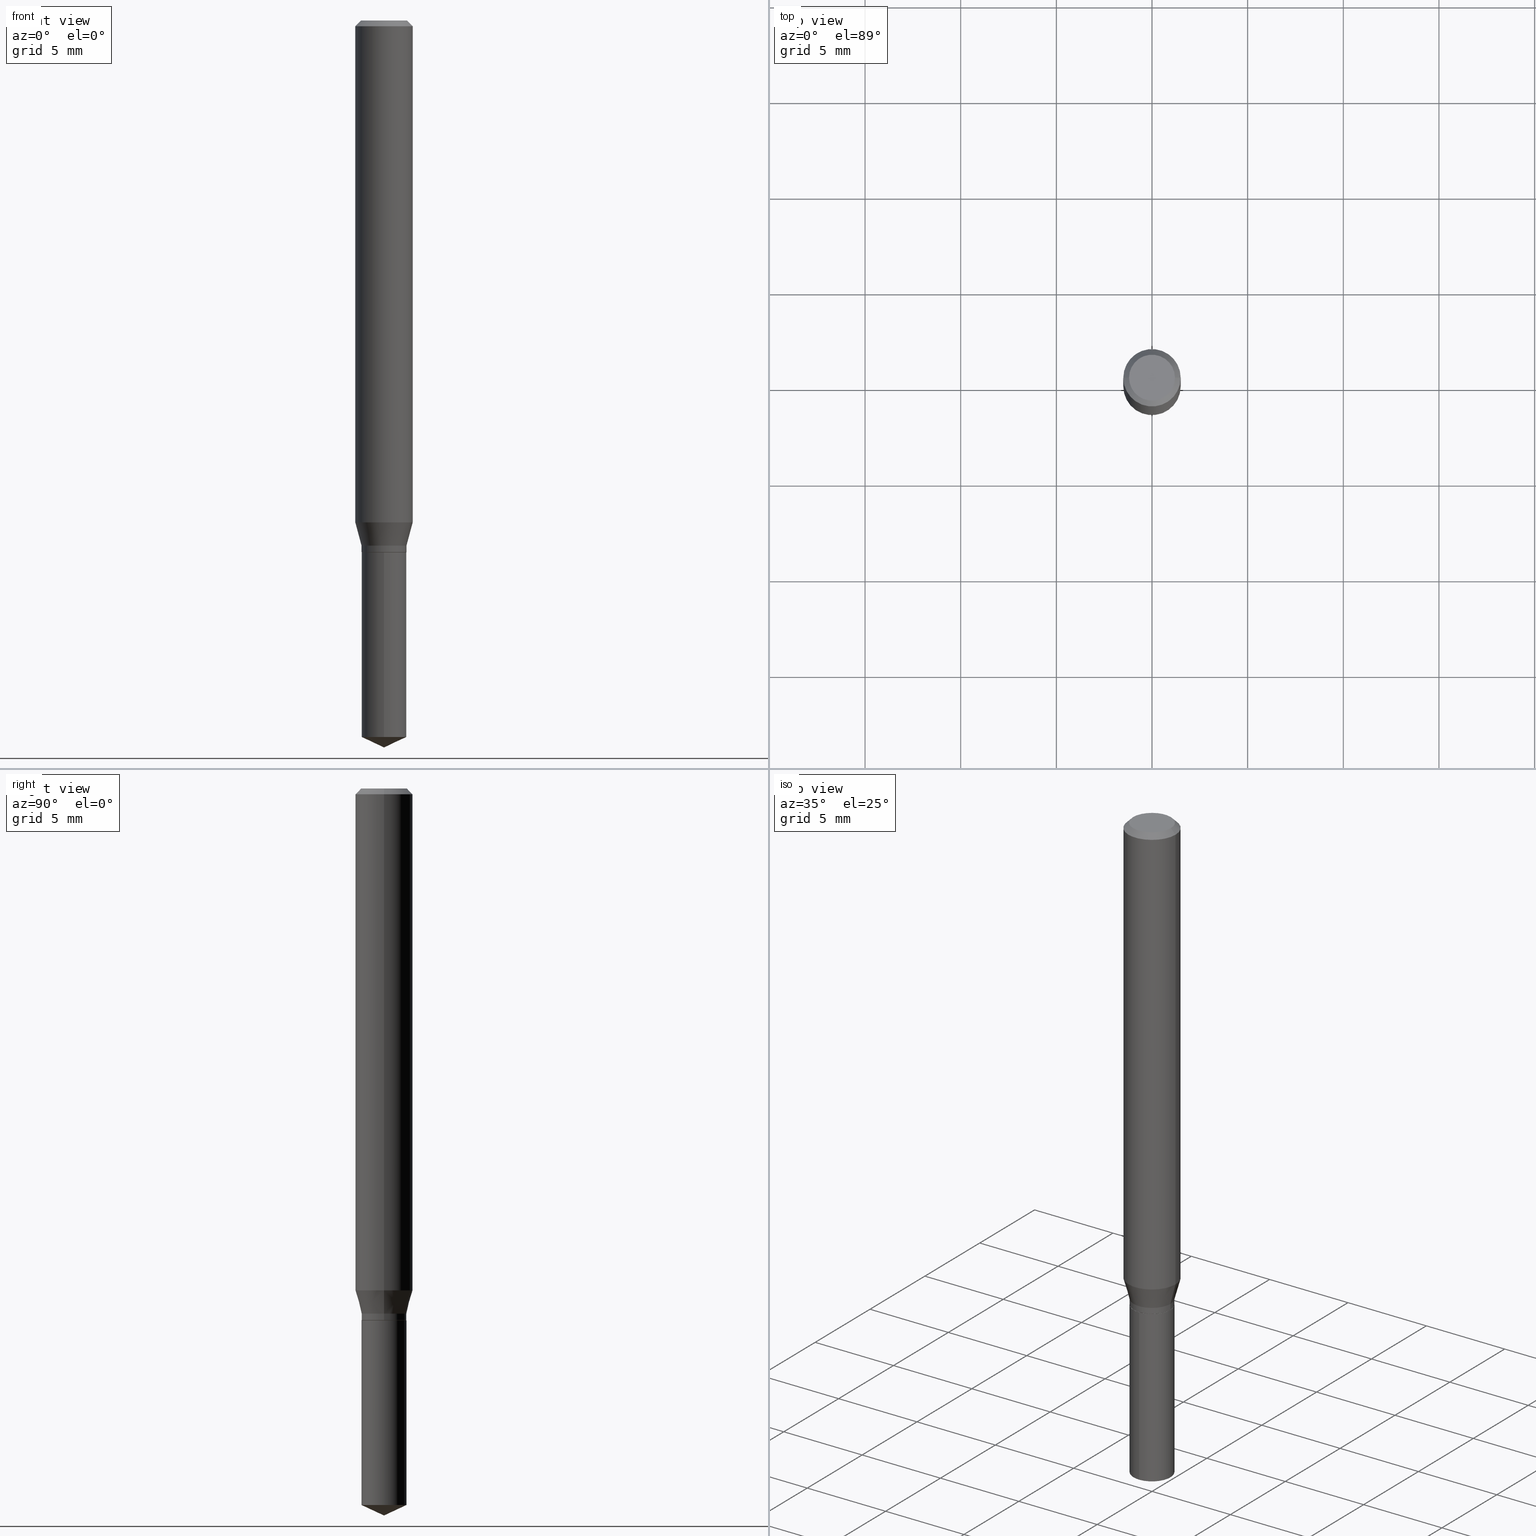
[diagram: canonical four-view strip — front | top / right | iso, engineering-drawing reading convention]
A machine part, canonical four-view strip (front | top / right | iso — engineering-drawing reading convention). The complete STEP part file that produces these views, byte-faithful:
ISO-10303-21;
HEADER;
FILE_DESCRIPTION (( 'STEP AP203' ),
    '1' );
FILE_NAME ('07642.STEP',
    '2024-04-24T00:15:13',
    ( '' ),
    ( '' ),
    'SwSTEP 2.0',
    'SolidWorks 2023',
    '' );
FILE_SCHEMA (( 'CONFIG_CONTROL_DESIGN' ));
ENDSEC;

DATA;
#1 = ADVANCED_BREP_SHAPE_REPRESENTATION ( '07642', ( #268, #77, #379 ), #323 ) ;
#2 = AXIS2_PLACEMENT_3D ( 'NONE', #212, #68, #95 ) ;
#3 = DIRECTION ( 'NONE',  ( -2.445468806185136597E-29, 3.491481338843145583E-15, 1.000000000000000000 ) ) ;
#4 = CC_DESIGN_APPROVAL ( #111, ( #227 ) ) ;
#5 = FACE_OUTER_BOUND ( 'NONE', #347, .T. ) ;
#6 = LINE ( 'NONE', #344, #281 ) ;
#7 = PERSON_AND_ORGANIZATION ( #176, #455 ) ;
#8 = CIRCLE ( 'NONE', #261, 0.04624999999999999944 ) ;
#9 = PERSON_AND_ORGANIZATION ( #176, #455 ) ;
#10 = DIRECTION ( 'NONE',  ( -2.445468806185136597E-29, 3.491481338843145583E-15, 1.000000000000000000 ) ) ;
#11 = APPROVAL_STATUS ( 'not_yet_approved' ) ;
#12 = ORIENTED_EDGE ( 'NONE', *, *, #420, .F. ) ;
#13 = DIRECTION ( 'NONE',  ( 2.445468806185136597E-29, -3.491481338843145583E-15, -1.000000000000000000 ) ) ;
#14 = APPROVAL_ROLE ( '' ) ;
#15 = VERTEX_POINT ( 'NONE', #126 ) ;
#16 = DIRECTION ( 'NONE',  ( 1.000000000000000000, -6.982962677686266711E-15, 4.876185090822587894E-29 ) ) ;
#17 = ADVANCED_FACE ( 'NONE', ( #292 ), #319, .F. ) ;
#18 = AXIS2_PLACEMENT_3D ( 'NONE', #414, #101, #298 ) ;
#19 = VECTOR ( 'NONE', #410, 39.37007874015748854 ) ;
#20 = VERTEX_POINT ( 'NONE', #76 ) ;
#21 = CARTESIAN_POINT ( 'NONE',  ( 2.888098660104663328E-31, -4.123439461173779030E-17, -0.01181000000000006871 ) ) ;
#22 = ORIENTED_EDGE ( 'NONE', *, *, #50, .T. ) ;
#23 = DIRECTION ( 'NONE',  ( -0.2588190451025210725, 5.211531920934548675E-15, 0.9659258262890682012 ) ) ;
#24 = ADVANCED_FACE ( 'NONE', ( #115 ), #294, .T. ) ;
#25 = CARTESIAN_POINT ( 'NONE',  ( -0.04624999999999999944, -3.467661644435105114E-15, -1.080600000000000005 ) ) ;
#26 = APPROVAL_PERSON_ORGANIZATION ( #393, #111, #155 ) ;
#27 = CARTESIAN_POINT ( 'NONE',  ( 2.675342873966538993E-29, -3.819680584694400481E-15, -1.093999999999999861 ) ) ;
#28 = ORIENTED_EDGE ( 'NONE', *, *, #320, .T. ) ;
#29 = CARTESIAN_POINT ( 'NONE',  ( 2.675342873966538993E-29, -3.819680584694400481E-15, -1.093999999999999861 ) ) ;
#30 = EDGE_CURVE ( 'NONE', #431, #229, #401, .T. ) ;
#31 = CARTESIAN_POINT ( 'NONE',  ( -0.05904999999999999832, 3.711095515056362547E-16, -0.01181000000000006871 ) ) ;
#32 = CC_DESIGN_PERSON_AND_ORGANIZATION_ASSIGNMENT ( #466, #359, ( #227 ) ) ;
#33 = VECTOR ( 'NONE', #376, 39.37007874015748143 ) ;
#34 = CIRCLE ( 'NONE', #488, 0.04624999999999999944 ) ;
#35 = DIRECTION ( 'NONE',  ( -1.000000000000000000, 6.982962677686265922E-15, -4.876176775795935793E-29 ) ) ;
#36 = CYLINDRICAL_SURFACE ( 'NONE', #246, 0.05905000000000006771 ) ;
#37 = EDGE_CURVE ( 'NONE', #220, #103, #196, .T. ) ;
#38 = CC_DESIGN_PERSON_AND_ORGANIZATION_ASSIGNMENT ( #9, #395, ( #227 ) ) ;
#39 = CYLINDRICAL_SURFACE ( 'NONE', #122, 0.04624999999999999944 ) ;
#40 = VECTOR ( 'NONE', #483, 39.37007874015748143 ) ;
#41 = LINE ( 'NONE', #267, #450 ) ;
#42 = FACE_OUTER_BOUND ( 'NONE', #290, .T. ) ;
#43 = EDGE_LOOP ( 'NONE', ( #129, #22, #459, #265 ) ) ;
#44 = DIRECTION ( 'NONE',  ( 0.000000000000000000, 0.000000000000000000, 1.000000000000000000 ) ) ;
#45 = ORIENTED_EDGE ( 'NONE', *, *, #30, .T. ) ;
#46 = AXIS2_PLACEMENT_3D ( 'NONE', #468, #234, #168 ) ;
#47 = AXIS2_PLACEMENT_3D ( 'NONE', #272, #490, #112 ) ;
#48 = CYLINDRICAL_SURFACE ( 'NONE', #69, 0.04624999999999999944 ) ;
#49 = CARTESIAN_POINT ( 'NONE',  ( -0.04624999999999999944, -3.467661644435105114E-15, -1.093999999999999861 ) ) ;
#50 = EDGE_CURVE ( 'NONE', #220, #403, #480, .T. ) ;
#51 = ADVANCED_FACE ( 'NONE', ( #89 ), #93, .T. ) ;
#52 = PERSON_AND_ORGANIZATION ( #176, #455 ) ;
#53 = EDGE_LOOP ( 'NONE', ( #96, #472, #45, #128 ) ) ;
#54 = DIRECTION ( 'NONE',  ( 1.000000000000000000, -6.982962677686265133E-15, 0.000000000000000000 ) ) ;
#55 = DIRECTION ( 'NONE',  ( -2.445458899330790108E-29, 3.491495526022433205E-15, 1.000000000000000000 ) ) ;
#56 = VECTOR ( 'NONE', #23, 39.37007874015748143 ) ;
#57 = CIRCLE ( 'NONE', #108, 0.05905000000000013016 ) ;
#58 = ORIENTED_EDGE ( 'NONE', *, *, #341, .T. ) ;
#59 = FACE_OUTER_BOUND ( 'NONE', #336, .T. ) ;
#60 = ORIENTED_EDGE ( 'NONE', *, *, #320, .F. ) ;
#61 = CARTESIAN_POINT ( 'NONE',  ( -0.05904999999999999832, -1.404094610414935572E-15, -0.01181000000000006871 ) ) ;
#62 = CARTESIAN_POINT ( 'NONE',  ( 0.04624999999999999944, -4.142642608537390474E-15, -1.093999999999999861 ) ) ;
#63 = CIRCLE ( 'NONE', #350, 0.04624999999999999944 ) ;
#64 = SECURITY_CLASSIFICATION ( '', '', #158 ) ;
#65 = CARTESIAN_POINT ( 'NONE',  ( 2.676565608369631794E-29, -3.821426325363822773E-15, -1.094499999999999806 ) ) ;
#66 = CC_DESIGN_PERSON_AND_ORGANIZATION_ASSIGNMENT ( #7, #363, ( #118 ) ) ;
#67 = LINE ( 'NONE', #415, #462 ) ;
#68 = DIRECTION ( 'NONE',  ( -2.445458899330790108E-29, 3.491495526022433205E-15, 1.000000000000000000 ) ) ;
#69 = AXIS2_PLACEMENT_3D ( 'NONE', #192, #369, #117 ) ;
#70 = DIRECTION ( 'NONE',  ( -6.982962677686265922E-15, -1.000000000000000000, 5.906698364679487997E-15 ) ) ;
#71 = ADVANCED_FACE ( 'NONE', ( #287 ), #48, .T. ) ;
#72 = CARTESIAN_POINT ( 'NONE',  ( 0.05905000000000013016, -4.018449743268188111E-15, -1.032829749663117802 ) ) ;
#73 = ORIENTED_EDGE ( 'NONE', *, *, #189, .T. ) ;
#74 = DIRECTION ( 'NONE',  ( -6.982962677686265922E-15, -1.000000000000000000, 2.953349182339743999E-15 ) ) ;
#75 = CARTESIAN_POINT ( 'NONE',  ( 2.676565608369631794E-29, -3.821426325363822773E-15, -1.094499999999999806 ) ) ;
#76 = CARTESIAN_POINT ( 'NONE',  ( 0.04574999999999999900, -4.140896867867968970E-15, -1.094499999999999806 ) ) ;
#77 = MANIFOLD_SOLID_BREP ( 'Body-Move/Copy2[2]', #107 ) ;
#78 = COORDINATED_UNIVERSAL_TIME_OFFSET ( 5, 0, .BEHIND. ) ;
#79 = AXIS2_PLACEMENT_3D ( 'NONE', #331, #97, #144 ) ;
#80 = VECTOR ( 'NONE', #351, 39.37007874015748854 ) ;
#81 = LINE ( 'NONE', #404, #172 ) ;
#82 = CC_DESIGN_DATE_AND_TIME_ASSIGNMENT ( #318, #119, ( #64 ) ) ;
#83 = ORIENTED_EDGE ( 'NONE', *, *, #482, .T. ) ;
#84 = APPROVAL_ROLE ( '' ) ;
#85 = CARTESIAN_POINT ( 'NONE',  ( 8.265746106709734507E-48, -1.180129479067563789E-33, -3.380025165646692144E-19 ) ) ;
#86 = ORIENTED_EDGE ( 'NONE', *, *, #149, .T. ) ;
#87 = DATE_AND_TIME ( #434, #156 ) ;
#88 = ORIENTED_EDGE ( 'NONE', *, *, #445, .T. ) ;
#89 = FACE_OUTER_BOUND ( 'NONE', #203, .T. ) ;
#90 = ORIENTED_EDGE ( 'NONE', *, *, #104, .F. ) ;
#91 = ORIENTED_EDGE ( 'NONE', *, *, #151, .T. ) ;
#92 = DIRECTION ( 'NONE',  ( -1.000000000000000000, 6.982962677686266711E-15, 0.000000000000000000 ) ) ;
#93 = CONICAL_SURFACE ( 'NONE', #343, 0.04574999999999999900, 0.7853981633974141952 ) ;
#94 = LOCAL_TIME ( 20, 15, 13.00000000000000000, #471 ) ;
#95 = DIRECTION ( 'NONE',  ( -6.982962677686267499E-15, -1.000000000000000000, 3.520397390770430993E-15 ) ) ;
#96 = ORIENTED_EDGE ( 'NONE', *, *, #189, .F. ) ;
#97 = DIRECTION ( 'NONE',  ( -2.445468806185136597E-29, 3.491481338843145583E-15, 1.000000000000000000 ) ) ;
#98 = ADVANCED_FACE ( 'NONE', ( #123 ), #389, .T. ) ;
#99 = DIRECTION ( 'NONE',  ( 1.000000000000000000, -6.982962677686265133E-15, 0.000000000000000000 ) ) ;
#100 = ADVANCED_FACE ( 'NONE', ( #317 ), #142, .T. ) ;
#101 = DIRECTION ( 'NONE',  ( -2.445468806185136597E-29, 3.491481338843145583E-15, 1.000000000000000000 ) ) ;
#102 = DIRECTION ( 'NONE',  ( -2.445468806185136877E-29, 3.491481338843145188E-15, 1.000000000000000000 ) ) ;
#103 = VERTEX_POINT ( 'NONE', #285 ) ;
#104 = EDGE_CURVE ( 'NONE', #103, #229, #81, .T. ) ;
#105 = CARTESIAN_POINT ( 'NONE',  ( 3.658651059288795076E-29, -5.223626456482161457E-15, -1.496099999999999985 ) ) ;
#106 = ADVANCED_FACE ( 'NONE', ( #394 ), #130, .T. ) ;
#107 = CLOSED_SHELL ( 'NONE', ( #51, #24, #385, #409, #106, #71, #98, #217, #157, #174, #346, #283 ) ) ;
#108 = AXIS2_PLACEMENT_3D ( 'NONE', #384, #216, #313 ) ;
#109 = DIRECTION ( 'NONE',  ( -2.445458899330790108E-29, 3.491495526022433205E-15, 1.000000000000000000 ) ) ;
#110 = LINE ( 'NONE', #105, #173 ) ;
#111 = APPROVAL ( #368, 'UNSPECIFIED' ) ;
#112 = DIRECTION ( 'NONE',  ( 1.000000000000000000, -6.982962677686265133E-15, 0.000000000000000000 ) ) ;
#113 = VECTOR ( 'NONE', #373, 39.37007874015748143 ) ;
#114 = DATE_TIME_ROLE ( 'creation_date' ) ;
#115 = FACE_OUTER_BOUND ( 'NONE', #53, .T. ) ;
#116 = PERSON_AND_ORGANIZATION ( #176, #455 ) ;
#117 = DIRECTION ( 'NONE',  ( 1.000000000000000000, -6.982962677686266711E-15, 4.876176775795935793E-29 ) ) ;
#118 = PRODUCT_DEFINITION ( 'UNKNOWN', '', #227, #442 ) ;
#119 = DATE_TIME_ROLE ( 'classification_date' ) ;
#120 = AXIS2_PLACEMENT_3D ( 'NONE', #435, #362, #127 ) ;
#121 = ORIENTED_EDGE ( 'NONE', *, *, #104, .T. ) ;
#122 = AXIS2_PLACEMENT_3D ( 'NONE', #185, #386, #150 ) ;
#123 = FACE_OUTER_BOUND ( 'NONE', #43, .T. ) ;
#124 = COORDINATED_UNIVERSAL_TIME_OFFSET ( 5, 0, .BEHIND. ) ;
#125 = ORIENTED_EDGE ( 'NONE', *, *, #375, .F. ) ;
#126 = CARTESIAN_POINT ( 'NONE',  ( -3.229620238429630240E-16, -0.04625000000000382971, -1.094499999999999806 ) ) ;
#127 = DIRECTION ( 'NONE',  ( 1.000000000000000000, -6.982962677686266711E-15, 4.876176775795935793E-29 ) ) ;
#128 = ORIENTED_EDGE ( 'NONE', *, *, #209, .F. ) ;
#129 = ORIENTED_EDGE ( 'NONE', *, *, #37, .F. ) ;
#130 = CYLINDRICAL_SURFACE ( 'NONE', #120, 0.04624999999999999944 ) ;
#131 = UNCERTAINTY_MEASURE_WITH_UNIT (LENGTH_MEASURE( 1.000000000000000082E-05 ), #306, 'distance_accuracy_value', 'NONE');
#132 = DIRECTION ( 'NONE',  ( -6.982962677686265922E-15, -1.000000000000000000, 5.906698364679487997E-15 ) ) ;
#133 = CONICAL_SURFACE ( 'NONE', #163, 0.05904999999999999832, 0.7853981633974452814 ) ;
#134 = AXIS2_PLACEMENT_3D ( 'NONE', #349, #187, #380 ) ;
#135 = VERTEX_POINT ( 'NONE', #49 ) ;
#136 = CARTESIAN_POINT ( 'NONE',  ( 0.04574999999999999900, -4.140896867867968970E-15, -1.094499999999999806 ) ) ;
#137 = EDGE_CURVE ( 'NONE', #403, #220, #8, .T. ) ;
#138 = CARTESIAN_POINT ( 'NONE',  ( 0.04624999999999999944, -3.229620238429898452E-16, 2.255231758805620374E-30 ) ) ;
#139 = EDGE_CURVE ( 'NONE', #484, #103, #226, .T. ) ;
#140 = DIMENSIONAL_EXPONENTS ( 1.000000000000000000, 0.000000000000000000, 0.000000000000000000, 0.000000000000000000, 0.000000000000000000, 0.000000000000000000, 0.000000000000000000 ) ;
#141 = CARTESIAN_POINT ( 'NONE',  ( 3.658651059288794515E-29, -5.223626456482161457E-15, -1.496099999999999985 ) ) ;
#142 = CONICAL_SURFACE ( 'NONE', #244, 84.42940631927488937, 1.134464013796318449 ) ;
#143 = AXIS2_PLACEMENT_3D ( 'NONE', #75, #180, #74 ) ;
#144 = DIRECTION ( 'NONE',  ( 1.000000000000000000, -6.982962677686266711E-15, 4.876185090822587894E-29 ) ) ;
#145 = FACE_OUTER_BOUND ( 'NONE', #340, .T. ) ;
#146 = CARTESIAN_POINT ( 'NONE',  ( 0.04624999999999999944, -4.095856758596892601E-15, -1.080600000000000005 ) ) ;
#147 = DIRECTION ( 'NONE',  ( 0.2588190451025210725, 1.565188264969624137E-15, 0.9659258262890682012 ) ) ;
#148 = ORIENTED_EDGE ( 'NONE', *, *, #37, .T. ) ;
#149 = EDGE_CURVE ( 'NONE', #326, #470, #293, .T. ) ;
#150 = DIRECTION ( 'NONE',  ( -6.982962677686265922E-15, -1.000000000000000000, 2.953349182339743999E-15 ) ) ;
#151 = EDGE_CURVE ( 'NONE', #15, #233, #179, .T. ) ;
#152 = CARTESIAN_POINT ( 'NONE',  ( 0.000000000000000000, 0.000000000000000000, 0.000000000000000000 ) ) ;
#153 = ORIENTED_EDGE ( 'NONE', *, *, #237, .T. ) ;
#154 = CLOSED_SHELL ( 'NONE', ( #421, #100, #207, #438, #17 ) ) ;
#155 = APPROVAL_ROLE ( '' ) ;
#156 = LOCAL_TIME ( 20, 15, 13.00000000000000000, #124 ) ;
#157 = ADVANCED_FACE ( 'NONE', ( #477 ), #133, .T. ) ;
#158 = SECURITY_CLASSIFICATION_LEVEL ( 'unclassified' ) ;
#159 = DIRECTION ( 'NONE',  ( 1.000000000000000000, -6.982962677686265133E-15, 0.000000000000000000 ) ) ;
#160 = CALENDAR_DATE ( 2024, 23, 4 ) ;
#161 = DIRECTION ( 'NONE',  ( -2.445468806185136597E-29, 3.491481338843145583E-15, 1.000000000000000000 ) ) ;
#162 =( NAMED_UNIT ( * ) PLANE_ANGLE_UNIT ( ) SI_UNIT ( $, .RADIAN. ) );
#163 = AXIS2_PLACEMENT_3D ( 'NONE', #21, #441, #92 ) ;
#164 = AXIS2_PLACEMENT_3D ( 'NONE', #307, #3, #353 ) ;
#165 = CARTESIAN_POINT ( 'NONE',  ( 2.676565608369631794E-29, -3.821426325363822773E-15, -1.094499999999999806 ) ) ;
#166 = ORIENTED_EDGE ( 'NONE', *, *, #300, .T. ) ;
#167 = APPLICATION_PROTOCOL_DEFINITION ( 'international standard', 'config_control_design', 1994, #206 ) ;
#168 = DIRECTION ( 'NONE',  ( 1.000000000000000000, -6.982962677686265133E-15, 0.000000000000000000 ) ) ;
#169 = ORIENTED_EDGE ( 'NONE', *, *, #445, .F. ) ;
#170 = DIRECTION ( 'NONE',  ( 2.445458899330789267E-29, -3.491495526022433599E-15, -1.000000000000000000 ) ) ;
#171 = DIRECTION ( 'NONE',  ( 0.7071067811865232589, -2.468850131082003836E-15, 0.7071067811865715536 ) ) ;
#172 = VECTOR ( 'NONE', #330, 39.37007874015748143 ) ;
#173 = VECTOR ( 'NONE', #264, 39.37007874015748143 ) ;
#174 = ADVANCED_FACE ( 'NONE', ( #59 ), #370, .F. ) ;
#175 = DIRECTION ( 'NONE',  ( -2.445458899330790108E-29, 3.491495526022433599E-15, 1.000000000000000000 ) ) ;
#176 = PERSON ( 'UNSPECIFIED', 'UNSPECIFIED', 'UNSPECIFIED', ('UNSPECIFIED'), ('UNSPECIFIED'), ('UNSPECIFIED') ) ;
#177 = LINE ( 'NONE', #210, #113 ) ;
#178 = CARTESIAN_POINT ( 'NONE',  ( 3.605921352514544890E-29, -5.148310790137766755E-15, -1.474533270810331587 ) ) ;
#179 = CIRCLE ( 'NONE', #357, 0.04624999999999999944 ) ;
#180 = DIRECTION ( 'NONE',  ( -2.445458899330790108E-29, 3.491495526022433205E-15, 1.000000000000000000 ) ) ;
#181 = DIRECTION ( 'NONE',  ( 0.7071067811865453523, -7.319954787623248157E-15, -0.7071067811865496822 ) ) ;
#182 = ORIENTED_EDGE ( 'NONE', *, *, #458, .F. ) ;
#183 = CIRCLE ( 'NONE', #79, 0.04724000000000000421 ) ;
#184 = CC_DESIGN_APPROVAL ( #427, ( #64 ) ) ;
#185 = CARTESIAN_POINT ( 'NONE',  ( 2.676565608369631794E-29, -3.821426325363822773E-15, -1.094499999999999806 ) ) ;
#186 = EDGE_CURVE ( 'NONE', #329, #20, #423, .T. ) ;
#187 = DIRECTION ( 'NONE',  ( -2.438088387897960049E-29, 3.491481338843145188E-15, 1.000000000000000000 ) ) ;
#188 = MECHANICAL_CONTEXT ( 'NONE', #457, 'mechanical' ) ;
#189 = EDGE_CURVE ( 'NONE', #470, #326, #183, .T. ) ;
#190 = APPROVAL_PERSON_ORGANIZATION ( #238, #304, #84 ) ;
#191 = DATE_AND_TIME ( #316, #94 ) ;
#192 = CARTESIAN_POINT ( 'NONE',  ( 0.000000000000000000, 0.000000000000000000, 0.000000000000000000 ) ) ;
#193 = PERSON_AND_ORGANIZATION_ROLE ( 'design_owner' ) ;
#194 = CARTESIAN_POINT ( 'NONE',  ( 2.642573591963658303E-29, -3.772894734753902608E-15, -1.080600000000000005 ) ) ;
#195 = APPROVAL_STATUS ( 'not_yet_approved' ) ;
#196 = LINE ( 'NONE', #467, #56 ) ;
#197 = ORIENTED_EDGE ( 'NONE', *, *, #209, .T. ) ;
#198 = CALENDAR_DATE ( 2024, 23, 4 ) ;
#199 = AXIS2_PLACEMENT_3D ( 'NONE', #65, #452, #255 ) ;
#200 = DIRECTION ( 'NONE',  ( -6.982962677686265922E-15, -1.000000000000000000, 2.953349182339743999E-15 ) ) ;
#201 = EDGE_CURVE ( 'NONE', #278, #233, #67, .T. ) ;
#202 = ORIENTED_EDGE ( 'NONE', *, *, #137, .F. ) ;
#203 = EDGE_LOOP ( 'NONE', ( #275, #273, #437, #321 ) ) ;
#204 = ORIENTED_EDGE ( 'NONE', *, *, #352, .F. ) ;
#205 = CARTESIAN_POINT ( 'NONE',  ( 2.676565608369631794E-29, -3.821426325363822773E-15, -1.094499999999999806 ) ) ;
#206 = APPLICATION_CONTEXT ( 'configuration controlled 3d designs of mechanical parts and assemblies' ) ;
#207 = ADVANCED_FACE ( 'NONE', ( #253 ), #211, .T. ) ;
#208 = DIRECTION ( 'NONE',  ( 1.000000000000000000, -6.982962677686264344E-15, 0.000000000000000000 ) ) ;
#209 = EDGE_CURVE ( 'NONE', #326, #229, #371, .T. ) ;
#210 = CARTESIAN_POINT ( 'NONE',  ( -0.04624999999999999944, 3.286260152890463320E-16, -2.275007479242894085E-30 ) ) ;
#211 = CONICAL_SURFACE ( 'NONE', #2, 84.42940631927488937, 1.134464013796318449 ) ;
#212 = CARTESIAN_POINT ( 'NONE',  ( -9.261924752013118283E-28, 1.322368428517963298E-13, 37.87397874015748300 ) ) ;
#213 = CARTESIAN_POINT ( 'NONE',  ( -3.229620238429536562E-16, -0.04625000000000513423, -1.474533270810331143 ) ) ;
#214 = CARTESIAN_POINT ( 'NONE',  ( 2.676565608369631794E-29, -3.821426325363822773E-15, -1.094499999999999806 ) ) ;
#215 = DIRECTION ( 'NONE',  ( -2.445468806185136877E-29, 3.491481338843145188E-15, 1.000000000000000000 ) ) ;
#216 = DIRECTION ( 'NONE',  ( -2.445468806185136597E-29, 3.491481338843145583E-15, 1.000000000000000000 ) ) ;
#217 = ADVANCED_FACE ( 'NONE', ( #479 ), #407, .T. ) ;
#218 = DIRECTION ( 'NONE',  ( -2.445468806185136597E-29, 3.491481338843145583E-15, 1.000000000000000000 ) ) ;
#219 = ORIENTED_EDGE ( 'NONE', *, *, #263, .T. ) ;
#220 = VERTEX_POINT ( 'NONE', #25 ) ;
#221 = AXIS2_PLACEMENT_3D ( 'NONE', #360, #10, #159 ) ;
#222 = CIRCLE ( 'NONE', #164, 0.05904999999999999832 ) ;
#223 =( LENGTH_UNIT ( ) NAMED_UNIT ( * ) SI_UNIT ( $, .METRE. ) );
#224 = DIRECTION ( 'NONE',  ( 1.000000000000000000, 0.000000000000000000, 0.000000000000000000 ) ) ;
#225 = DIRECTION ( 'NONE',  ( 1.000000000000000000, -6.982962677686265133E-15, 0.000000000000000000 ) ) ;
#226 = CIRCLE ( 'NONE', #46, 0.05905000000000013016 ) ;
#227 = PRODUCT_DEFINITION_FORMATION_WITH_SPECIFIED_SOURCE ( 'ANY', '', #406, .NOT_KNOWN. ) ;
#228 = APPROVAL_DATE_TIME ( #464, #304 ) ;
#229 = VERTEX_POINT ( 'NONE', #61 ) ;
#230 = DIRECTION ( 'NONE',  ( 1.000000000000000000, -6.982962677686264344E-15, 0.000000000000000000 ) ) ;
#231 = ORIENTED_EDGE ( 'NONE', *, *, #50, .F. ) ;
#232 = COORDINATED_UNIVERSAL_TIME_OFFSET ( 5, 0, .BEHIND. ) ;
#233 = VERTEX_POINT ( 'NONE', #486 ) ;
#234 = DIRECTION ( 'NONE',  ( -2.445468806185136597E-29, 3.491481338843145583E-15, 1.000000000000000000 ) ) ;
#235 = EDGE_CURVE ( 'NONE', #335, #403, #416, .T. ) ;
#236 = EDGE_LOOP ( 'NONE', ( #166, #289, #202, #367 ) ) ;
#237 = EDGE_CURVE ( 'NONE', #278, #241, #63, .T. ) ;
#238 = PERSON_AND_ORGANIZATION ( #176, #455 ) ;
#239 = ORIENTED_EDGE ( 'NONE', *, *, #458, .T. ) ;
#240 = DIRECTION ( 'NONE',  ( -6.982962677686267499E-15, -1.000000000000000000, 3.520397390770430993E-15 ) ) ;
#241 = VERTEX_POINT ( 'NONE', #213 ) ;
#242 = ORIENTED_EDGE ( 'NONE', *, *, #151, .F. ) ;
#243 = CARTESIAN_POINT ( 'NONE',  ( 0.000000000000000000, 0.000000000000000000, 0.000000000000000000 ) ) ;
#244 = AXIS2_PLACEMENT_3D ( 'NONE', #399, #429, #240 ) ;
#245 = VERTEX_POINT ( 'NONE', #141 ) ;
#246 = AXIS2_PLACEMENT_3D ( 'NONE', #152, #218, #382 ) ;
#247 = DIRECTION ( 'NONE',  ( -1.000000000000000000, 6.982962677686266711E-15, 0.000000000000000000 ) ) ;
#248 = ORIENTED_EDGE ( 'NONE', *, *, #355, .F. ) ;
#249 = DIRECTION ( 'NONE',  ( 1.000000000000000000, -6.982962677686265133E-15, 0.000000000000000000 ) ) ;
#250 = CC_DESIGN_DATE_AND_TIME_ASSIGNMENT ( #324, #114, ( #118 ) ) ;
#251 = DIRECTION ( 'NONE',  ( -2.445458899330790108E-29, 3.491495526022433205E-15, 1.000000000000000000 ) ) ;
#252 = ORIENTED_EDGE ( 'NONE', *, *, #341, .F. ) ;
#253 = FACE_OUTER_BOUND ( 'NONE', #396, .T. ) ;
#254 = VECTOR ( 'NONE', #215, 39.37007874015748143 ) ;
#255 = DIRECTION ( 'NONE',  ( 1.000000000000000000, -6.982962677686264344E-15, 0.000000000000000000 ) ) ;
#256 = EDGE_CURVE ( 'NONE', #20, #329, #270, .T. ) ;
#257 = CARTESIAN_POINT ( 'NONE',  ( 3.658672935554494692E-29, -5.223595400746700193E-15, -1.496099999999999985 ) ) ;
#258 = EDGE_LOOP ( 'NONE', ( #443, #436 ) ) ;
#259 = CARTESIAN_POINT ( 'NONE',  ( 3.605921352514544890E-29, -5.148310790137766755E-15, -1.474533270810331587 ) ) ;
#260 = ORIENTED_EDGE ( 'NONE', *, *, #149, .F. ) ;
#261 = AXIS2_PLACEMENT_3D ( 'NONE', #194, #433, #54 ) ;
#262 = CIRCLE ( 'NONE', #143, 0.04624999999999999944 ) ;
#263 = EDGE_CURVE ( 'NONE', #20, #335, #485, .T. ) ;
#264 = DIRECTION ( 'NONE',  ( -6.328713451373382000E-15, -0.9063077870366502697, 0.4226182617406987196 ) ) ;
#265 = ORIENTED_EDGE ( 'NONE', *, *, #391, .F. ) ;
#266 = ORIENTED_EDGE ( 'NONE', *, *, #374, .F. ) ;
#267 = CARTESIAN_POINT ( 'NONE',  ( 0.04624999999999999944, -4.095856758596892601E-15, -1.080600000000000005 ) ) ;
#268 = MANIFOLD_SOLID_BREP ( 'Body-Move/Copy2[1]', #154 ) ;
#269 = LINE ( 'NONE', #461, #80 ) ;
#270 = CIRCLE ( 'NONE', #314, 0.04574999999999999900 ) ;
#271 = AXIS2_PLACEMENT_3D ( 'NONE', #259, #417, #70 ) ;
#272 = CARTESIAN_POINT ( 'NONE',  ( 2.642573591963658303E-29, -3.772894734753902608E-15, -1.080600000000000005 ) ) ;
#273 = ORIENTED_EDGE ( 'NONE', *, *, #352, .T. ) ;
#274 = ORIENTED_EDGE ( 'NONE', *, *, #295, .F. ) ;
#275 = ORIENTED_EDGE ( 'NONE', *, *, #256, .T. ) ;
#276 =( NAMED_UNIT ( * ) SI_UNIT ( $, .STERADIAN. ) SOLID_ANGLE_UNIT ( ) );
#277 = DIRECTION ( 'NONE',  ( -2.445468806185136597E-29, 3.491481338843145583E-15, 1.000000000000000000 ) ) ;
#278 = VERTEX_POINT ( 'NONE', #299 ) ;
#279 = DIRECTION ( 'NONE',  ( -2.445468806185136597E-29, 3.491481338843145583E-15, 1.000000000000000000 ) ) ;
#280 = AXIS2_PLACEMENT_3D ( 'NONE', #165, #170, #473 ) ;
#281 = VECTOR ( 'NONE', #181, 39.37007874015748143 ) ;
#282 = ORIENTED_EDGE ( 'NONE', *, *, #375, .T. ) ;
#283 = ADVANCED_FACE ( 'NONE', ( #301 ), #402, .T. ) ;
#284 = ORIENTED_EDGE ( 'NONE', *, *, #235, .T. ) ;
#285 = CARTESIAN_POINT ( 'NONE',  ( -0.05905000000000013016, -3.186530311684473698E-15, -1.032829749663117802 ) ) ;
#286 = PERSON_AND_ORGANIZATION_ROLE ( 'classification_officer' ) ;
#287 = FACE_OUTER_BOUND ( 'NONE', #439, .T. ) ;
#288 = ORIENTED_EDGE ( 'NONE', *, *, #338, .F. ) ;
#289 = ORIENTED_EDGE ( 'NONE', *, *, #338, .T. ) ;
#290 = EDGE_LOOP ( 'NONE', ( #83, #405, #242, #274 ) ) ;
#291 = ORIENTED_EDGE ( 'NONE', *, *, #139, .F. ) ;
#292 = FACE_OUTER_BOUND ( 'NONE', #327, .T. ) ;
#293 = CIRCLE ( 'NONE', #332, 0.04724000000000000421 ) ;
#294 = CONICAL_SURFACE ( 'NONE', #469, 0.05904999999999999832, 0.7853981633974452814 ) ;
#295 = EDGE_CURVE ( 'NONE', #241, #15, #342, .T. ) ;
#296 = CARTESIAN_POINT ( 'NONE',  ( 2.676565608369631794E-29, -3.821426325363822773E-15, -1.094499999999999806 ) ) ;
#297 = ORIENTED_EDGE ( 'NONE', *, *, #355, .T. ) ;
#298 = DIRECTION ( 'NONE',  ( 1.000000000000000000, -6.982962677686266711E-15, 4.876176775795936353E-29 ) ) ;
#299 = CARTESIAN_POINT ( 'NONE',  ( 3.286260152890822745E-16, 0.04624999999999482997, -1.474533270810331809 ) ) ;
#300 = EDGE_CURVE ( 'NONE', #335, #135, #333, .T. ) ;
#301 = FACE_OUTER_BOUND ( 'NONE', #365, .T. ) ;
#302 = AXIS2_PLACEMENT_3D ( 'NONE', #426, #161, #225 ) ;
#303 = CC_DESIGN_SECURITY_CLASSIFICATION ( #64, ( #227 ) ) ;
#304 = APPROVAL ( #11, 'UNSPECIFIED' ) ;
#305 = LINE ( 'NONE', #257, #19 ) ;
#306 =( CONVERSION_BASED_UNIT ( 'INCH', #311 ) LENGTH_UNIT ( ) NAMED_UNIT ( #140 ) );
#307 = CARTESIAN_POINT ( 'NONE',  ( 2.888098660104663328E-31, -4.123439461173779030E-17, -0.01181000000000006871 ) ) ;
#308 = CC_DESIGN_PERSON_AND_ORGANIZATION_ASSIGNMENT ( #328, #193, ( #406 ) ) ;
#309 = AXIS2_PLACEMENT_3D ( 'NONE', #451, #378, #35 ) ;
#310 = APPROVAL_PERSON_ORGANIZATION ( #52, #427, #14 ) ;
#311 = LENGTH_MEASURE_WITH_UNIT ( LENGTH_MEASURE( 0.02539999999999999897 ), #223 );
#312 = PLANE ( 'NONE',  #134 ) ;
#313 = DIRECTION ( 'NONE',  ( 1.000000000000000000, -6.982962677686265133E-15, 0.000000000000000000 ) ) ;
#314 = AXIS2_PLACEMENT_3D ( 'NONE', #296, #444, #208 ) ;
#315 = CIRCLE ( 'NONE', #271, 0.04624999999999999944 ) ;
#316 = CALENDAR_DATE ( 2024, 23, 4 ) ;
#317 = FACE_OUTER_BOUND ( 'NONE', #448, .T. ) ;
#318 = DATE_AND_TIME ( #160, #412 ) ;
#319 = PLANE ( 'NONE',  #280 ) ;
#320 = EDGE_CURVE ( 'NONE', #245, #278, #305, .T. ) ;
#321 = ORIENTED_EDGE ( 'NONE', *, *, #263, .F. ) ;
#322 = VECTOR ( 'NONE', #102, 39.37007874015748143 ) ;
#323 =( GEOMETRIC_REPRESENTATION_CONTEXT ( 3 ) GLOBAL_UNCERTAINTY_ASSIGNED_CONTEXT ( ( #131 ) ) GLOBAL_UNIT_ASSIGNED_CONTEXT ( ( #306, #162, #276 ) ) REPRESENTATION_CONTEXT ( 'NONE', 'WORKASPACE' ) );
#324 = DATE_AND_TIME ( #198, #481 ) ;
#325 = CARTESIAN_POINT ( 'NONE',  ( 2.676565608369631794E-29, -3.821426325363822773E-15, -1.094499999999999806 ) ) ;
#326 = VERTEX_POINT ( 'NONE', #449 ) ;
#327 = EDGE_LOOP ( 'NONE', ( #91, #282 ) ) ;
#328 = PERSON_AND_ORGANIZATION ( #176, #455 ) ;
#329 = VERTEX_POINT ( 'NONE', #339 ) ;
#330 = DIRECTION ( 'NONE',  ( -2.445468806185136877E-29, 3.491481338843145188E-15, 1.000000000000000000 ) ) ;
#331 = CARTESIAN_POINT ( 'NONE',  ( 8.265746106709734507E-48, -1.180129479067563789E-33, -3.380025165646692144E-19 ) ) ;
#332 = AXIS2_PLACEMENT_3D ( 'NONE', #85, #364, #16 ) ;
#333 = CIRCLE ( 'NONE', #358, 0.04624999999999999944 ) ;
#334 = DIRECTION ( 'NONE',  ( 1.000000000000000000, -6.982962677686264344E-15, 0.000000000000000000 ) ) ;
#335 = VERTEX_POINT ( 'NONE', #62 ) ;
#336 = EDGE_LOOP ( 'NONE', ( #86, #73 ) ) ;
#337 = DIRECTION ( 'NONE',  ( -2.445468806185136597E-29, 3.491481338843145583E-15, 1.000000000000000000 ) ) ;
#338 = EDGE_CURVE ( 'NONE', #135, #220, #177, .T. ) ;
#339 = CARTESIAN_POINT ( 'NONE',  ( -0.04574999999999999900, -3.493703796579465646E-15, -1.094499999999999806 ) ) ;
#340 = EDGE_LOOP ( 'NONE', ( #408, #148, #291, #12 ) ) ;
#341 = EDGE_CURVE ( 'NONE', #135, #335, #34, .T. ) ;
#342 = LINE ( 'NONE', #489, #40 ) ;
#343 = AXIS2_PLACEMENT_3D ( 'NONE', #205, #277, #230 ) ;
#344 = CARTESIAN_POINT ( 'NONE',  ( 0.05904999999999999832, -4.463468013801466955E-16, -0.01181000000000006871 ) ) ;
#345 = ORIENTED_EDGE ( 'NONE', *, *, #295, .T. ) ;
#346 = ADVANCED_FACE ( 'NONE', ( #419 ), #312, .F. ) ;
#347 = EDGE_LOOP ( 'NONE', ( #400, #121, #456, #169 ) ) ;
#348 = LINE ( 'NONE', #422, #254 ) ;
#349 = CARTESIAN_POINT ( 'NONE',  ( 2.676565608369631794E-29, -3.821426325363822773E-15, -1.094499999999999806 ) ) ;
#350 = AXIS2_PLACEMENT_3D ( 'NONE', #178, #251, #132 ) ;
#351 = DIRECTION ( 'NONE',  ( -0.7071067811865232589, 7.493145998870265808E-15, 0.7071067811865715536 ) ) ;
#352 = EDGE_CURVE ( 'NONE', #329, #135, #269, .T. ) ;
#353 = DIRECTION ( 'NONE',  ( 1.000000000000000000, -6.982962677686266711E-15, 0.000000000000000000 ) ) ;
#354 = ORIENTED_EDGE ( 'NONE', *, *, #186, .T. ) ;
#355 = EDGE_CURVE ( 'NONE', #229, #431, #222, .T. ) ;
#356 = CALENDAR_DATE ( 2024, 23, 4 ) ;
#357 = AXIS2_PLACEMENT_3D ( 'NONE', #325, #55, #200 ) ;
#358 = AXIS2_PLACEMENT_3D ( 'NONE', #29, #446, #249 ) ;
#359 = PERSON_AND_ORGANIZATION_ROLE ( 'creator' ) ;
#360 = CARTESIAN_POINT ( 'NONE',  ( 2.642573591963658303E-29, -3.772894734753902608E-15, -1.080600000000000005 ) ) ;
#361 = COORDINATED_UNIVERSAL_TIME_OFFSET ( 5, 0, .BEHIND. ) ;
#362 = DIRECTION ( 'NONE',  ( -2.445468806185136597E-29, 3.491481338843145583E-15, 1.000000000000000000 ) ) ;
#363 = PERSON_AND_ORGANIZATION_ROLE ( 'creator' ) ;
#364 = DIRECTION ( 'NONE',  ( -2.445468806185136597E-29, 3.491481338843145583E-15, 1.000000000000000000 ) ) ;
#365 = EDGE_LOOP ( 'NONE', ( #204, #354, #219, #252 ) ) ;
#366 = AXIS2_PLACEMENT_3D ( 'NONE', #214, #377, #334 ) ;
#367 = ORIENTED_EDGE ( 'NONE', *, *, #235, .F. ) ;
#368 = APPROVAL_STATUS ( 'not_yet_approved' ) ;
#369 = DIRECTION ( 'NONE',  ( -2.445468806185136597E-29, 3.491481338843145583E-15, 1.000000000000000000 ) ) ;
#370 = PLANE ( 'NONE',  #309 ) ;
#371 = LINE ( 'NONE', #31, #33 ) ;
#372 = LOCAL_TIME ( 20, 15, 13.00000000000000000, #232 ) ;
#373 = DIRECTION ( 'NONE',  ( -2.445468806185136877E-29, 3.491481338843145188E-15, 1.000000000000000000 ) ) ;
#374 = EDGE_CURVE ( 'NONE', #470, #431, #6, .T. ) ;
#375 = EDGE_CURVE ( 'NONE', #233, #15, #262, .T. ) ;
#376 = DIRECTION ( 'NONE',  ( -0.7071067811865453523, 2.468850131082234184E-15, -0.7071067811865496822 ) ) ;
#377 = DIRECTION ( 'NONE',  ( -2.445468806185136597E-29, 3.491481338843145583E-15, 1.000000000000000000 ) ) ;
#378 = DIRECTION ( 'NONE',  ( 2.438088387897960049E-29, -3.491481338843145188E-15, -1.000000000000000000 ) ) ;
#379 = AXIS2_PLACEMENT_3D ( 'NONE', #243, #44, #224 ) ;
#380 = DIRECTION ( 'NONE',  ( 1.000000000000000000, -6.982962677686265922E-15, 4.876176775795935793E-29 ) ) ;
#381 = DIRECTION ( 'NONE',  ( -6.982962677686265922E-15, -1.000000000000000000, 2.953349182339743999E-15 ) ) ;
#382 = DIRECTION ( 'NONE',  ( 1.000000000000000000, -6.982962677686266711E-15, 4.876176775795936353E-29 ) ) ;
#383 = AXIS2_PLACEMENT_3D ( 'NONE', #465, #279, #388 ) ;
#384 = CARTESIAN_POINT ( 'NONE',  ( 2.525752934901158389E-29, -3.606105797150813980E-15, -1.032829749663117802 ) ) ;
#385 = ADVANCED_FACE ( 'NONE', ( #5 ), #36, .T. ) ;
#386 = DIRECTION ( 'NONE',  ( -2.445458899330790108E-29, 3.491495526022433205E-15, 1.000000000000000000 ) ) ;
#387 = APPROVAL_DATE_TIME ( #191, #111 ) ;
#388 = DIRECTION ( 'NONE',  ( 1.000000000000000000, -6.982962677686266711E-15, 0.000000000000000000 ) ) ;
#389 = CONICAL_SURFACE ( 'NONE', #221, 0.04624999999999999944, 0.2617993877991497409 ) ;
#390 = CONICAL_SURFACE ( 'NONE', #47, 0.04624999999999999944, 0.2617993877991497409 ) ;
#391 = EDGE_CURVE ( 'NONE', #103, #484, #57, .T. ) ;
#392 = EDGE_LOOP ( 'NONE', ( #90, #413, #88, #248 ) ) ;
#393 = PERSON_AND_ORGANIZATION ( #176, #455 ) ;
#394 = FACE_OUTER_BOUND ( 'NONE', #236, .T. ) ;
#395 = PERSON_AND_ORGANIZATION_ROLE ( 'design_supplier' ) ;
#396 = EDGE_LOOP ( 'NONE', ( #60, #239, #425 ) ) ;
#397 = CARTESIAN_POINT ( 'NONE',  ( 2.888098660104663328E-31, -4.123439461173779030E-17, -0.01181000000000006871 ) ) ;
#398 = APPROVAL_DATE_TIME ( #87, #427 ) ;
#399 = CARTESIAN_POINT ( 'NONE',  ( -9.261924752013118283E-28, 1.322368428517963298E-13, 37.87397874015748300 ) ) ;
#400 = ORIENTED_EDGE ( 'NONE', *, *, #139, .T. ) ;
#401 = CIRCLE ( 'NONE', #383, 0.05904999999999999832 ) ;
#402 = CONICAL_SURFACE ( 'NONE', #366, 0.04574999999999999900, 0.7853981633974141952 ) ;
#403 = VERTEX_POINT ( 'NONE', #146 ) ;
#404 = CARTESIAN_POINT ( 'NONE',  ( -0.05905000000000006771, 4.195754854663396409E-16, -2.904631170795525045E-30 ) ) ;
#405 = ORIENTED_EDGE ( 'NONE', *, *, #201, .T. ) ;
#406 = PRODUCT ( '07642', '07642', '', ( #188 ) ) ;
#407 = CYLINDRICAL_SURFACE ( 'NONE', #18, 0.05905000000000006771 ) ;
#408 = ORIENTED_EDGE ( 'NONE', *, *, #137, .T. ) ;
#409 = ADVANCED_FACE ( 'NONE', ( #145 ), #390, .T. ) ;
#410 = DIRECTION ( 'NONE',  ( 6.439704144417036664E-15, 0.9063077870366532673, 0.4226182617406925024 ) ) ;
#411 = VECTOR ( 'NONE', #171, 39.37007874015748854 ) ;
#412 = LOCAL_TIME ( 20, 15, 13.00000000000000000, #78 ) ;
#413 = ORIENTED_EDGE ( 'NONE', *, *, #391, .T. ) ;
#414 = CARTESIAN_POINT ( 'NONE',  ( 0.000000000000000000, 0.000000000000000000, 0.000000000000000000 ) ) ;
#415 = CARTESIAN_POINT ( 'NONE',  ( 3.286260152890730547E-16, 0.04624999999999617611, -1.094500000000000028 ) ) ;
#416 = LINE ( 'NONE', #138, #322 ) ;
#417 = DIRECTION ( 'NONE',  ( -2.445458899330790108E-29, 3.491495526022433205E-15, 1.000000000000000000 ) ) ;
#418 = CARTESIAN_POINT ( 'NONE',  ( 0.04724000000000000421, -3.852183633974369345E-16, -3.380025165621689721E-19 ) ) ;
#419 = FACE_OUTER_BOUND ( 'NONE', #258, .T. ) ;
#420 = EDGE_CURVE ( 'NONE', #403, #484, #41, .T. ) ;
#421 = ADVANCED_FACE ( 'NONE', ( #42 ), #39, .T. ) ;
#422 = CARTESIAN_POINT ( 'NONE',  ( 0.05905000000000006771, -4.123439461173745257E-16, 2.879382386107503723E-30 ) ) ;
#423 = CIRCLE ( 'NONE', #199, 0.04574999999999999900 ) ;
#424 = CYLINDRICAL_SURFACE ( 'NONE', #463, 0.04624999999999999944 ) ;
#425 = ORIENTED_EDGE ( 'NONE', *, *, #237, .F. ) ;
#426 = CARTESIAN_POINT ( 'NONE',  ( 2.642573591963658303E-29, -3.772894734753902608E-15, -1.080600000000000005 ) ) ;
#427 = APPROVAL ( #195, 'UNSPECIFIED' ) ;
#428 = ORIENTED_EDGE ( 'NONE', *, *, #201, .F. ) ;
#429 = DIRECTION ( 'NONE',  ( -2.445458899330790108E-29, 3.491495526022433205E-15, 1.000000000000000000 ) ) ;
#430 = CC_DESIGN_APPROVAL ( #304, ( #118 ) ) ;
#431 = VERTEX_POINT ( 'NONE', #460 ) ;
#432 = APPLICATION_PROTOCOL_DEFINITION ( 'international standard', 'config_control_design', 1994, #457 ) ;
#433 = DIRECTION ( 'NONE',  ( -2.445468806185136597E-29, 3.491481338843145583E-15, 1.000000000000000000 ) ) ;
#434 = CALENDAR_DATE ( 2024, 23, 4 ) ;
#435 = CARTESIAN_POINT ( 'NONE',  ( 0.000000000000000000, 0.000000000000000000, 0.000000000000000000 ) ) ;
#436 = ORIENTED_EDGE ( 'NONE', *, *, #186, .F. ) ;
#437 = ORIENTED_EDGE ( 'NONE', *, *, #300, .F. ) ;
#438 = ADVANCED_FACE ( 'NONE', ( #454 ), #424, .T. ) ;
#439 = EDGE_LOOP ( 'NONE', ( #288, #58, #284, #231 ) ) ;
#440 = EDGE_LOOP ( 'NONE', ( #428, #153, #345, #125 ) ) ;
#441 = DIRECTION ( 'NONE',  ( 2.445468806185136597E-29, -3.491481338843145583E-15, -1.000000000000000000 ) ) ;
#442 = DESIGN_CONTEXT ( 'detailed design', #206, 'design' ) ;
#443 = ORIENTED_EDGE ( 'NONE', *, *, #256, .F. ) ;
#444 = DIRECTION ( 'NONE',  ( -2.445468806185136597E-29, 3.491481338843145583E-15, 1.000000000000000000 ) ) ;
#445 = EDGE_CURVE ( 'NONE', #484, #431, #348, .T. ) ;
#446 = DIRECTION ( 'NONE',  ( -2.445468806185136597E-29, 3.491481338843145583E-15, 1.000000000000000000 ) ) ;
#447 = CC_DESIGN_PERSON_AND_ORGANIZATION_ASSIGNMENT ( #116, #286, ( #64 ) ) ;
#448 = EDGE_LOOP ( 'NONE', ( #182, #28, #478 ) ) ;
#449 = CARTESIAN_POINT ( 'NONE',  ( -0.04724000000000000421, 3.504923541997677355E-16, -3.380025165670481712E-19 ) ) ;
#450 = VECTOR ( 'NONE', #147, 39.37007874015748143 ) ;
#451 = CARTESIAN_POINT ( 'NONE',  ( 4.132873053354867254E-48, -5.900647395337818946E-34, -1.690012582823346072E-19 ) ) ;
#452 = DIRECTION ( 'NONE',  ( -2.445468806185136597E-29, 3.491481338843145583E-15, 1.000000000000000000 ) ) ;
#453 = CARTESIAN_POINT ( 'NONE',  ( 2.676565608369631794E-29, -3.821426325363822773E-15, -1.094499999999999806 ) ) ;
#454 = FACE_OUTER_BOUND ( 'NONE', #440, .T. ) ;
#455 = ORGANIZATION ( 'UNSPECIFIED', 'UNSPECIFIED', '' ) ;
#456 = ORIENTED_EDGE ( 'NONE', *, *, #30, .F. ) ;
#457 = APPLICATION_CONTEXT ( 'configuration controlled 3d designs of mechanical parts and assemblies' ) ;
#458 = EDGE_CURVE ( 'NONE', #245, #241, #110, .T. ) ;
#459 = ORIENTED_EDGE ( 'NONE', *, *, #420, .T. ) ;
#460 = CARTESIAN_POINT ( 'NONE',  ( 0.05904999999999999832, -4.535783407291118600E-16, -0.01181000000000006871 ) ) ;
#461 = CARTESIAN_POINT ( 'NONE',  ( -0.04574999999999999900, -3.496353023753576847E-15, -1.094499999999999806 ) ) ;
#462 = VECTOR ( 'NONE', #175, 39.37007874015748143 ) ;
#463 = AXIS2_PLACEMENT_3D ( 'NONE', #453, #109, #381 ) ;
#464 = DATE_AND_TIME ( #356, #372 ) ;
#465 = CARTESIAN_POINT ( 'NONE',  ( 2.888098660104663328E-31, -4.123439461173779030E-17, -0.01181000000000006871 ) ) ;
#466 = PERSON_AND_ORGANIZATION ( #176, #455 ) ;
#467 = CARTESIAN_POINT ( 'NONE',  ( -0.04624999999999999944, -3.444268719464856571E-15, -1.080600000000000005 ) ) ;
#468 = CARTESIAN_POINT ( 'NONE',  ( 2.525752934901158389E-29, -3.606105797150813980E-15, -1.032829749663117802 ) ) ;
#469 = AXIS2_PLACEMENT_3D ( 'NONE', #397, #13, #247 ) ;
#470 = VERTEX_POINT ( 'NONE', #418 ) ;
#471 = COORDINATED_UNIVERSAL_TIME_OFFSET ( 5, 0, .BEHIND. ) ;
#472 = ORIENTED_EDGE ( 'NONE', *, *, #374, .T. ) ;
#473 = DIRECTION ( 'NONE',  ( 6.982962677686265922E-15, 1.000000000000000000, -3.491495526022433599E-15 ) ) ;
#474 = PRODUCT_DEFINITION_SHAPE ( 'NONE', 'NONE',  #118 ) ;
#475 = PRODUCT_RELATED_PRODUCT_CATEGORY ( 'detail', '', ( #406 ) ) ;
#476 = SHAPE_DEFINITION_REPRESENTATION ( #474, #1 ) ;
#477 = FACE_OUTER_BOUND ( 'NONE', #487, .T. ) ;
#478 = ORIENTED_EDGE ( 'NONE', *, *, #482, .F. ) ;
#479 = FACE_OUTER_BOUND ( 'NONE', #392, .T. ) ;
#480 = CIRCLE ( 'NONE', #302, 0.04624999999999999944 ) ;
#481 = LOCAL_TIME ( 20, 15, 13.00000000000000000, #361 ) ;
#482 = EDGE_CURVE ( 'NONE', #241, #278, #315, .T. ) ;
#483 = DIRECTION ( 'NONE',  ( -2.445458899330790108E-29, 3.491495526022433599E-15, 1.000000000000000000 ) ) ;
#484 = VERTEX_POINT ( 'NONE', #72 ) ;
#485 = LINE ( 'NONE', #136, #411 ) ;
#486 = CARTESIAN_POINT ( 'NONE',  ( 3.286260152890823731E-16, 0.04624999999999617611, -1.094500000000000028 ) ) ;
#487 = EDGE_LOOP ( 'NONE', ( #266, #260, #197, #297 ) ) ;
#488 = AXIS2_PLACEMENT_3D ( 'NONE', #27, #337, #99 ) ;
#489 = CARTESIAN_POINT ( 'NONE',  ( -3.229620238429630240E-16, -0.04625000000000382971, -1.094499999999999806 ) ) ;
#490 = DIRECTION ( 'NONE',  ( -2.445468806185136597E-29, 3.491481338843145583E-15, 1.000000000000000000 ) ) ;
ENDSEC;
END-ISO-10303-21;
